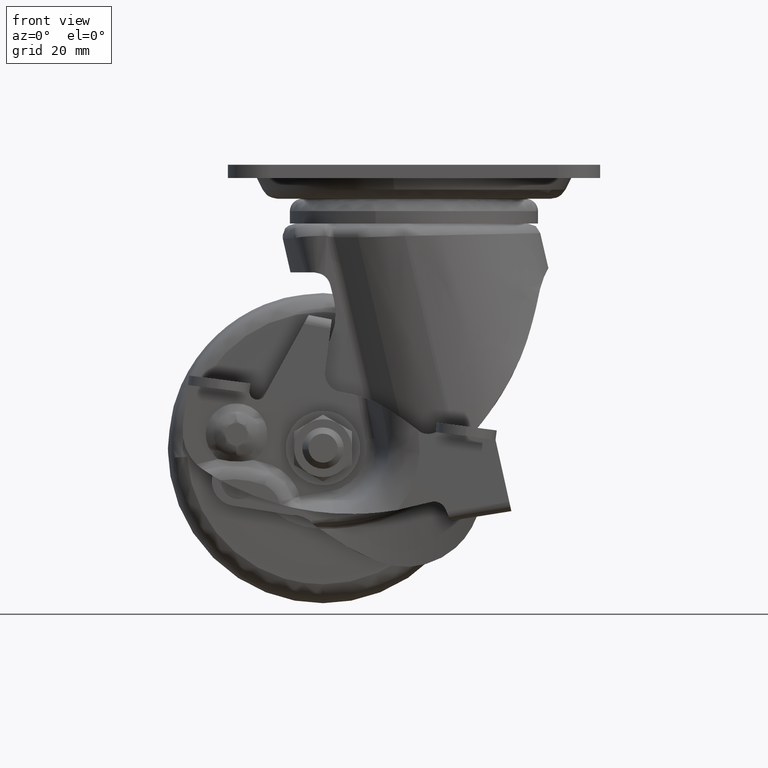
[diagram: clean part render]
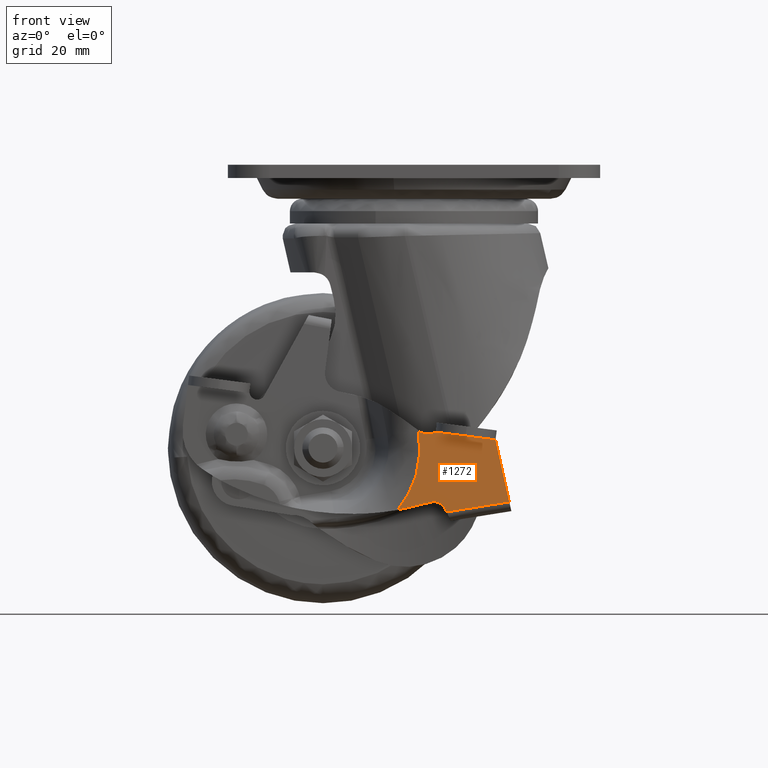
[diagram: same view with one face highlighted and labeled with its STEP entity id]
A machine part, front view. The second image highlights one B-rep face of the part: STEP entity #1272.
In plain terms, the highlighted face is a freeform B-spline surface patch.
Its self-contained STEP definition (entity closure, byte-faithful):
#960=CARTESIAN_POINT('',(19.712834999999998,-37.740012999999962,-66.498755000000202));
#961=VERTEX_POINT('',#960);
#967=CARTESIAN_POINT('',(23.043957831354799,-37.740012999999898,-81.484349158202718));
#968=VERTEX_POINT('',#967);
#969=CARTESIAN_POINT('',(19.712834999999998,-37.740012999999962,-66.498755000000202));
#970=CARTESIAN_POINT('',(23.043957831354799,-37.740012999999898,-81.484349158202718));
#971=QUASI_UNIFORM_CURVE('',1,(#969,#970),.UNSPECIFIED.,.F.,.U.);
#972=EDGE_CURVE('',#961,#968,#971,.T.);
#1163=CARTESIAN_POINT('',(-5.316949401809437,-37.740012999999898,-63.222458842155923));
#1164=CARTESIAN_POINT('',(24.393191627860819,-37.740012999999898,-63.222458842155923));
#1165=CARTESIAN_POINT('',(-5.316949401809437,-37.740012999999898,-84.891250427271629));
#1166=CARTESIAN_POINT('',(24.393191627860819,-37.740012999999898,-84.891250427271629));
#1167=B_SPLINE_SURFACE_WITH_KNOTS('',1,1,((#1163,#1165),(#1164,#1166)),.UNSPECIFIED.,.F.,.F.,.U.,(2,2),(2,2),(0.0,29.710141029670261),(0.0,21.668791585115709),.UNSPECIFIED.);
#1168=CARTESIAN_POINT('',(1.035373979327062,-37.740012999999898,-64.206508369475216));
#1169=VERTEX_POINT('',#1168);
#1170=CARTESIAN_POINT('',(1.632223040857705,-37.740012999999962,-64.671825628711005));
#1171=VERTEX_POINT('',#1170);
#1172=CARTESIAN_POINT('',(1.035373979327132,-37.740012999999962,-64.206508369475117));
#1173=CARTESIAN_POINT('',(1.334815956216102,-37.740012999999955,-64.437861950221603));
#1174=CARTESIAN_POINT('',(1.632223040857799,-37.740012999999962,-64.671825628710891));
#1182=(BOUNDED_CURVE()B_SPLINE_CURVE(2,(#1172,#1173,#1174),.UNSPECIFIED.,.F.,.U.)CURVE()GEOMETRIC_REPRESENTATION_ITEM()QUASI_UNIFORM_CURVE()RATIONAL_B_SPLINE_CURVE((1.0,0.999990438009965,1.0))REPRESENTATION_ITEM(''));
#1183=EDGE_CURVE('',#1169,#1171,#1182,.T.);
#1184=ORIENTED_EDGE('',*,*,#1183,.F.);
#1185=CARTESIAN_POINT('',(-3.967716329812975,-37.740012999999962,-83.463264028504994));
#1186=VERTEX_POINT('',#1185);
#1187=CARTESIAN_POINT('',(1.035373979327042,-37.740012999999898,-64.206508369475216));
#1188=CARTESIAN_POINT('',(3.048605899168069,-37.740012999999898,-75.007868700760682));
#1189=CARTESIAN_POINT('',(-3.967716329812996,-37.740012999999898,-83.463264028504980));
#1197=(BOUNDED_CURVE()B_SPLINE_CURVE(2,(#1187,#1188,#1189),.UNSPECIFIED.,.F.,.U.)CURVE()GEOMETRIC_REPRESENTATION_ITEM()QUASI_UNIFORM_CURVE()RATIONAL_B_SPLINE_CURVE((1.0,0.905405625884356,1.0))REPRESENTATION_ITEM(''));
#1198=EDGE_CURVE('',#1169,#1186,#1197,.T.);
#1199=ORIENTED_EDGE('',*,*,#1198,.T.);
#1200=CARTESIAN_POINT('',(3.969362259177820,-37.740012999999962,-81.575003647230503));
#1201=VERTEX_POINT('',#1200);
#1202=CARTESIAN_POINT('',(3.969362259177826,-37.740012999999962,-81.575003647230574));
#1203=CARTESIAN_POINT('',(0.059624484195707,-37.740012999999962,-82.766299052028529));
#1204=CARTESIAN_POINT('',(-3.967716329812974,-37.740012999999962,-83.463264028505023));
#1212=(BOUNDED_CURVE()B_SPLINE_CURVE(2,(#1202,#1203,#1204),.UNSPECIFIED.,.F.,.U.)CURVE()GEOMETRIC_REPRESENTATION_ITEM()QUASI_UNIFORM_CURVE()RATIONAL_B_SPLINE_CURVE((1.0,0.998066152961003,1.0))REPRESENTATION_ITEM(''));
#1213=EDGE_CURVE('',#1201,#1186,#1212,.T.);
#1214=ORIENTED_EDGE('',*,*,#1213,.F.);
#1215=CARTESIAN_POINT('',(7.592762435914240,-37.740012999999962,-83.243473891488989));
#1216=VERTEX_POINT('',#1215);
#1217=CARTESIAN_POINT('',(3.969362259177820,-37.740012999999962,-81.575003647230503));
#1218=CARTESIAN_POINT('',(6.523570582407157,-37.740012999999955,-80.796738257622422));
#1219=CARTESIAN_POINT('',(7.592762435914240,-37.740012999999962,-83.243473891488989));
#1227=(BOUNDED_CURVE()B_SPLINE_CURVE(2,(#1217,#1218,#1219),.UNSPECIFIED.,.F.,.U.)CURVE()GEOMETRIC_REPRESENTATION_ITEM()QUASI_UNIFORM_CURVE()RATIONAL_B_SPLINE_CURVE((1.0,0.746979042103517,1.0))REPRESENTATION_ITEM(''));
#1228=EDGE_CURVE('',#1201,#1216,#1227,.T.);
#1229=ORIENTED_EDGE('',*,*,#1228,.T.);
#1230=CARTESIAN_POINT('',(7.883498059495070,-37.740012999999898,-83.907200371538593));
#1231=VERTEX_POINT('',#1230);
#1232=CARTESIAN_POINT('',(7.883498059495070,-37.740012999999898,-83.907200371538593));
#1233=CARTESIAN_POINT('',(7.592762435914240,-37.740012999999962,-83.243473891488989));
#1234=QUASI_UNIFORM_CURVE('',1,(#1232,#1233),.UNSPECIFIED.,.F.,.U.);
#1235=EDGE_CURVE('',#1231,#1216,#1234,.T.);
#1236=ORIENTED_EDGE('',*,*,#1235,.F.);
#1237=CARTESIAN_POINT('',(7.883498059495070,-37.740012999999898,-83.907200371538593));
#1238=CARTESIAN_POINT('',(23.043957831354799,-37.740012999999898,-81.484349158202718));
#1239=QUASI_UNIFORM_CURVE('',1,(#1237,#1238),.UNSPECIFIED.,.F.,.U.);
#1240=EDGE_CURVE('',#1231,#968,#1239,.T.);
#1241=ORIENTED_EDGE('',*,*,#1240,.T.);
#1242=ORIENTED_EDGE('',*,*,#972,.F.);
#1243=CARTESIAN_POINT('',(5.298570106274960,-37.740012999999898,-64.631785402332113));
#1244=VERTEX_POINT('',#1243);
#1245=CARTESIAN_POINT('',(5.298570106274960,-37.740012999999898,-64.631785402332113));
#1246=CARTESIAN_POINT('',(19.712834999999998,-37.740012999999962,-66.498755000000202));
#1247=QUASI_UNIFORM_CURVE('',1,(#1245,#1246),.UNSPECIFIED.,.F.,.U.);
#1248=EDGE_CURVE('',#1244,#961,#1247,.T.);
#1249=ORIENTED_EDGE('',*,*,#1248,.F.);
#1250=CARTESIAN_POINT('',(5.297804129810160,-37.740012999999962,-64.643300579515895));
#1251=VERTEX_POINT('',#1250);
#1252=CARTESIAN_POINT('',(5.297804129810160,-37.740012999999962,-64.643300579515895));
#1253=CARTESIAN_POINT('',(5.298570106274960,-37.740012999999898,-64.631785402332113));
#1254=QUASI_UNIFORM_CURVE('',1,(#1252,#1253),.UNSPECIFIED.,.F.,.U.);
#1255=EDGE_CURVE('',#1251,#1244,#1254,.T.);
#1256=ORIENTED_EDGE('',*,*,#1255,.F.);
#1257=CARTESIAN_POINT('',(5.297804129810159,-37.740012999999962,-64.643300579515895));
#1258=CARTESIAN_POINT('',(3.472366122896467,-37.740012999999955,-65.602393118627660));
#1259=CARTESIAN_POINT('',(1.632223040857729,-37.740012999999962,-64.671825628710963));
#1267=(BOUNDED_CURVE()B_SPLINE_CURVE(2,(#1257,#1258,#1259),.UNSPECIFIED.,.F.,.U.)CURVE()GEOMETRIC_REPRESENTATION_ITEM()QUASI_UNIFORM_CURVE()RATIONAL_B_SPLINE_CURVE((1.0,0.888843187817411,1.0))REPRESENTATION_ITEM(''));
#1268=EDGE_CURVE('',#1251,#1171,#1267,.T.);
#1269=ORIENTED_EDGE('',*,*,#1268,.T.);
#1270=EDGE_LOOP('',(#1184,#1199,#1214,#1229,#1236,#1241,#1242,#1249,#1256,#1269));
#1271=FACE_OUTER_BOUND('',#1270,.T.);
#1272=ADVANCED_FACE('',(#1271),#1167,.F.);